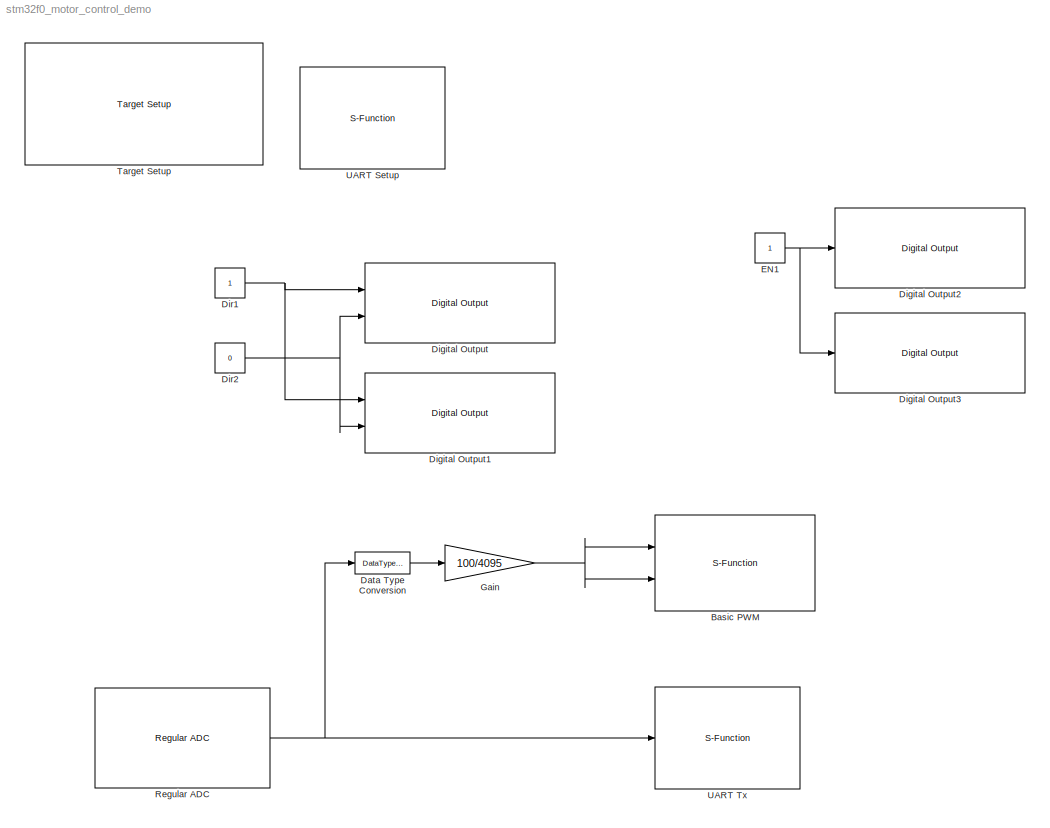
MODEL stm32f0_motor_control_demo
KIND model
CONFIG PreLoadFcn = waijung.modelPreload; % Required for working with Waijung Blockset. Do not remove.
BLOCK [S-Function] Basic PWM
  EnableBusSupport = off
  FunctionName = stm32f0_tim
  MaskCallbackString = stm32f0_tim_callback('conf');|stm32f0_tim_callback('timer');|||||||stm32f0_tim_callback('sampletime');|stm32f0_tim_callback('enablecustomportlabel');|stm32f0_tim_callback('conf');|stm32f0_tim_callback('conf');||stm32f0_tim_callback('blockid');||||||||
  MaskDisplay = text(0.95, 0.5, 'Timer: 3\\nPolarity: Active High\\nPeriod (sec): 0.0001\\nTs (sec): 0.1','ver','middle','hor','right'); port_label('input', 1,'CH3(B0)'); port_label('input', 2,'CH4(B1)');
  MaskEnableString = on,on,on,on,on,on,on,on,on,on,on,on,on,off,on,on,on,on,on,on,on,on
  MaskHelp = web(fullfile(waijungdocroot,'stm32f0_tim.htm'), '-browser')
  MaskIconFrame = on
  MaskIconOpaque = on
  MaskIconRotate = none
  MaskIconUnits = normalized
  MaskInitialization = stm32f0_tim_callback('init');
  MaskPortRotate = default
  MaskPromptString = Configuration|Timer|PWM Period (seconds)|Polarity|Channel 1|Channel 2|Channel 3|Channel 4|Sample time (sec)|Enable custom port labels (Ex. In1, In2, In3)|Custom input port labels (Ex. In1, In2, In3)|Custom output port labels (Ex. Out1, Out2, Out3)|Port Pin String|Block ID|Input Port Type|Input Port Width|Input Port Label|Output Port Type|Output Port Width|Output port label|Compatibility (Reserved ...<+45ch>
  MaskSelfModifiable = on
  MaskStyleString = popup(pwm),popup(1|2|3|14|15|16|17),edit,popup(Active High|Active Low),popup(Not available - Do not use|A6|C6|B4),popup(Not available - Do not use|A7|C7|B5),popup(Not available - Do not use|B0|C8),popup(Not available - Do not use|B1|C9),edit,checkbox,edit,edit,edit,edit,edit,edit,edit,edit,edit,edit,edit,edit
  MaskTabNameString = ,,,,,,,,,,,,,,,,,,,,,
  MaskToolTipString = on,on,on,on,on,on,on,on,on,on,on,on,on,on,on,on,on,on,on,on,on,on
  MaskTunableValueString = off,off,off,on,off,off,off,off,off,off,off,off,off,off,off,off,off,off,off,off,off,off
  MaskType = stm32f0_tim
  MaskValueString = pwm|3|0.0001|Active High|Not available - Do not use|Not available - Do not use|B0|B1|inf|off|Motor1,Motor2||0|BasicPWM|[-1 -1]|[]|{'CH3(B0)' 'CH4(B1)'}|[]|[]|{}|0|[\"3\",\"1\",\"0.0001\",\"Active High\",\"0\",\"0\",\"1\",\"1\",\"\",\"\",\"B\",\"B\",\"\",\"\",\"0\",\"1\",\"0\",\"0\",\"1\",\"1\",\"0\",\"1\",\"0\",\"0\",\"0\",\"4799\",\"0\",\"TIM_OCPolarity_High\"]
  MaskVarAliasString = ,,,,,,,,,,,,,,,,,,,,,
  MaskVariables = conf=&1;timer=&2;period=&3;polarity=@4;ch1pin=&5;ch2pin=&6;ch3pin=&7;ch4pin=&8;sampletime=@9;enablecustomportlabel=@10;cinputportlabel=&11;coutputportlabel=&12;portpinstr=&13;blockid=&14;inputporttype=@15;inputportwidth=@16;inputportlabel=&17;outputporttype=@18;outputportwidth=@19;outputportlabel=&20;compat=&21;optionstring=&22;
  MaskVisibilityString = off,on,on,on,on,on,on,on,on,on,off,off,off,off,off,off,off,off,off,off,off,off
  Parameters = conf,inputporttype,inputportwidth,outputporttype,outputportwidth,optionstring,sampletime,blockid
  Ports = [2]
BLOCK [DataTypeConversion] Data Type Conversion
  OutDataType = fixdt(1, 16)
  OutScaling = 2^0
  RndMeth = Floor
  SaturateOnIntegerOverflow = off
BLOCK [Reference] Digital Output  REF=stm32f0_io_lib/Digital Output
  Ports = [2]
  SourceBlock = stm32f0_io_lib/Digital Output
  SourceType = stm32f0_digital_output
  bitbandingstr = \n#define DigitalOutput_B2 Peripheral_BB(GPIOB->ODR, 2)  /* Output pin */\n#define DigitalOutput_B12 Peripheral_BB(GPIOB->ODR, 12)  /* Output pin */
  blockid = DigitalOutput
  cinputportlabel = Db1,Db2,EN2
  coutputportlabel = 0
  enablecustomportlabel = on
  pinstr = GPIO_Pin_2 | GPIO_Pin_12
  port = B
  porttype = Open Drain
  porttypestr = OD
  sampletime = -1
  sampletimestr = 0.1
  speed = 2
  use_bitband = off
  use_pin0 = off
  use_pin1 = off
  use_pin10 = off
  use_pin11 = off
  use_pin12 = on
  use_pin13 = off
  use_pin14 = off
  use_pin15 = off
  use_pin2 = on
  use_pin3 = off
  use_pin4 = off
  use_pin5 = off
  use_pin6 = off
  use_pin7 = off
  use_pin8 = off
  use_pin9 = off
  usedpinarray = [0  0  1  0  0  0  0  0  0  0  0  0  1  0  0  0]
BLOCK [Reference] Digital Output1  REF=stm32f0_io_lib/Digital Output
  Ports = [2]
  SourceBlock = stm32f0_io_lib/Digital Output
  SourceType = stm32f0_digital_output
  bitbandingstr = \n#define DigitalOutput1_A8 Peripheral_BB(GPIOA->ODR, 8)  /* Output pin */\n#define DigitalOutput1_A11 Peripheral_BB(GPIOA->ODR, 11)  /* Output pin */
  blockid = DigitalOutput1
  cinputportlabel = Da1,Da2,EN1
  coutputportlabel = 0
  enablecustomportlabel = on
  pinstr = GPIO_Pin_8 | GPIO_Pin_11
  port = A
  porttype = Open Drain
  porttypestr = OD
  sampletime = -1
  sampletimestr = 0.1
  speed = 2
  use_bitband = off
  use_pin0 = off
  use_pin1 = off
  use_pin10 = off
  use_pin11 = on
  use_pin12 = off
  use_pin13 = off
  use_pin14 = off
  use_pin15 = off
  use_pin2 = off
  use_pin3 = off
  use_pin4 = off
  use_pin5 = off
  use_pin6 = off
  use_pin7 = off
  use_pin8 = on
  use_pin9 = off
  usedpinarray = [0  0  0  0  0  0  0  0  1  0  0  1  0  0  0  0]
BLOCK [Reference] Digital Output2  REF=stm32f0_io_lib/Digital Output
  Ports = [1]
  SourceBlock = stm32f0_io_lib/Digital Output
  SourceType = stm32f0_digital_output
  bitbandingstr = \n#define DigitalOutput2_B13 Peripheral_BB(GPIOB->ODR, 13)  /* Output pin */
  blockid = DigitalOutput2
  cinputportlabel = Db1,Db2,EN2
  coutputportlabel = 0
  enablecustomportlabel = off
  pinstr = GPIO_Pin_13
  port = B
  porttype = Push Pull
  porttypestr = PP
  sampletime = -1
  sampletimestr = 0.1
  speed = 2
  use_bitband = off
  use_pin0 = off
  use_pin1 = off
  use_pin10 = off
  use_pin11 = off
  use_pin12 = off
  use_pin13 = on
  use_pin14 = off
  use_pin15 = off
  use_pin2 = off
  use_pin3 = off
  use_pin4 = off
  use_pin5 = off
  use_pin6 = off
  use_pin7 = off
  use_pin8 = off
  use_pin9 = off
  usedpinarray = [0  0  0  0  0  0  0  0  0  0  0  0  0  1  0  0]
BLOCK [Reference] Digital Output3  REF=stm32f0_io_lib/Digital Output
  Ports = [1]
  SourceBlock = stm32f0_io_lib/Digital Output
  SourceType = stm32f0_digital_output
  bitbandingstr = \n#define DigitalOutput3_A12 Peripheral_BB(GPIOA->ODR, 12)  /* Output pin */
  blockid = DigitalOutput3
  cinputportlabel = Da1,Da2,EN1
  coutputportlabel = 0
  enablecustomportlabel = off
  pinstr = GPIO_Pin_12
  port = A
  porttype = Push Pull
  porttypestr = PP
  sampletime = -1
  sampletimestr = 0.1
  speed = 2
  use_bitband = off
  use_pin0 = off
  use_pin1 = off
  use_pin10 = off
  use_pin11 = off
  use_pin12 = on
  use_pin13 = off
  use_pin14 = off
  use_pin15 = off
  use_pin2 = off
  use_pin3 = off
  use_pin4 = off
  use_pin5 = off
  use_pin6 = off
  use_pin7 = off
  use_pin8 = off
  use_pin9 = off
  usedpinarray = [0  0  0  0  0  0  0  0  0  0  0  0  1  0  0  0]
BLOCK [Constant] Dir1
  OutDataType = fixdt(1, 16)
  OutDataTypeMode = uint8
  OutDataTypeStr = uint8
  OutScaling = 2^0
BLOCK [Constant] Dir2
  OutDataType = fixdt(1, 16)
  OutDataTypeMode = uint8
  OutDataTypeStr = uint8
  OutScaling = 2^0
  Value = 0
BLOCK [Constant] EN1
  OutDataType = fixdt(1, 16)
  OutDataTypeMode = uint8
  OutDataTypeStr = uint8
  OutScaling = 2^0
BLOCK [Gain] Gain
  Gain = 100/4095
  OutDataType = fixdt(1, 16)
  OutDataTypeMode = Inherit via internal rule
  OutDataTypeStr = Inherit: Inherit via internal rule
  OutScaling = 2^0
  ParamDataTypeStr = single
  ParameterDataType = fixdt(1, 16)
  ParameterDataTypeMode = single
  ParameterScaling = 2^0
  SaturateOnIntegerOverflow = off
BLOCK [Reference] Regular ADC  REF=stm32f0_adc_lib/Regular ADC
  Ports = [0, 1]
  SourceBlock = stm32f0_adc_lib/Regular ADC
  SourceType = stm32f0_adc
  adc_ch0 = on
  adc_ch1 = off
  adc_ch10 = off
  adc_ch11 = off
  adc_ch12 = off
  adc_ch13 = off
  adc_ch14 = off
  adc_ch15 = off
  adc_ch16 = off
  adc_ch17 = off
  adc_ch18 = off
  adc_ch2 = off
  adc_ch3 = off
  adc_ch4 = off
  adc_ch5 = off
  adc_ch6 = off
  adc_ch7 = off
  adc_ch8 = off
  adc_ch9 = off
  blockid = RegularADC
  compat = 0
  conf = adc
  coutputportlabel = voltage,current
  enablecustomportlabel = off
  inputportlabel = {}
  inputporttype = []
  inputportwidth = []
  module = 1
  optionstring = [\"1\",\"ADC_SampleTime_55_5Cycles\",\"dummy\",\"dummy\",\"dummy\",\"1\",\"A\",\"0\",\"0\",\"A\",\"1\",\"0\",\"A\",\"2\",\"0\",\"A\",\"3\",\"0\",\"A\",\"4\",\"0\",\"A\",\"5\",\"0\",\"A\",\"6\",\"0\",\"A\",\"7\",\"0\",\"B\",\"0\",\"0\",\"B\",\"1\",\"0\",\"C\",\"0\",\"0\",\"C\",\"1\",\"0\",\"C\",\"2\",\"0\",\"C\",\"3\",\"0\",\"C\",\"4\",\"0\",\"C\",\"5\",\"0\",\"A\",\"0\",\"0\",\"A\",\"0\",\"0\",\"A...<+64ch>
  outputdatatype = Uint16
  outputportlabel = {'ADC_IN0'}
  outputporttype = [5]
  outputportwidth = []
  portpinstr = 0
  sampletime = inf
  samplingtime = 55.5 Cycles
BLOCK [Reference] Target Setup  REF=stm32f0_device_config_lib/Target Setup
  Ports = []
  Priority = 100
  SourceBlock = stm32f0_device_config_lib/Target Setup
  SourceType = stm32f0_target_setup
  assemblercontrolstr = $(patsubst %, -I%, .) -mcpu=cortex-m0 -mtune=cortex-m0 -mthumb -Wall -O3 -Wa,-amhls=$(<:.s=.lst) -D__STACK_SIZE=$(STACK_SIZE) -D__HEAP_SIZE=$(HEAP_SIZE)
  blockid = TargetSetup
  clockconfig = STM32F072B-DISCO Default (HSIOSC-8MHz/HCLK-48MHz)
  compiler = GNU ARM
  compilercontrolstr = $(patsubst %, -I%, .) -mcpu=cortex-m0 -mthumb -mabi=aapcs -Wall -O3 -mfloat-abi=soft -ffunction-sections -fdata-sections -fno-strict-aliasing -fno-builtin --short-enums
  editctrlstr = on
  enableautocompiledownload = on
  execprofile = None
  flashlength = 128k
  flashorigin = 0x8000000
  fullchiperase = off
  hclk = 48000000
  heapsize = 0x200
  hseval = 8000000
  lastprofileruart = 3
  linkercontrolstr = -T$(LD_SCRIPT) -Wl,-Map=$(MAP),--cref,--no-warn-mismatch -mcpu=cortex-m0 -mthumb  -Wall -O3 -mabi=aapcs -lc -specs=nosys.specs
  manualsetsampletime = off
  mcu = STM32F072CB (LQFP48)
  mcustr = STM32F072CB
  previous_compiler = GNU ARM
  profilerbaud = 500000
  profilerinitstr = 0.1,48000000,4800000,500000,0
  profilertxpin = Not used
  profileruart = 3
  programmerinterface = aMG USB Connect
  ramlength = 16k
  ramorigin = 0x20000000
  runafterdownload = on
  sampletime = 0.1
  showmemoryconfiguration = on
  stacksize = 0x400
  stdlib = STM32F072
  system_stm32f0xx_c_path = <path>
  systickreloadvalue = 4800000
  useextram = off
BLOCK [S-Function] UART Setup
  EnableBusSupport = off
  FunctionName = stm32f0_uart
  MaskCallbackString = stm32f0_uart_callback('conf');|stm32f0_uart_callback('uartmodule');|||||||stm32f0_uart_callback('flowcontrol');|||stm32f0_uart_callback('advanceoptions');|||stm32f0_uart_callback('conf');|stm32f0_uart_callback('conf');|stm32f0_uart_callback('binheader');|stm32f0_uart_callback('binterminator');|||||||||stm32f0_uart_callback('asciiformat');|||stm32f0_uart_callback('storagename');|||stm32f0_uart_call...<+176ch>
  MaskDescription = Default configuration for aMG USB Connect board:\n - UART module: 1\n - Tx pin: A9\n - Rx pin: A10\n\nAdvance options\n - Rx buffer size (bytes): max packet length can be received via DMA.\n - Tx buffer size (bytes): max packet length can be transmit via DMA.
  MaskDisplay = text(0.5, 0.5, 'Module: USART1_Setup\\nBaud (Bps): 115200\\nDMA Buffer: 64/64\\nTx/Rx Pin: A9/A10','ver','middle','hor','center');
  MaskEnableString = on,on,on,on,on,on,on,on,on,off,off,on,on,on,on,on,on,on,on,on,on,on,on,on,on,on,on,on,on,on,on,on,on,on,on,on,on,off,on,on,on,on,on,on,on,on,on,on,on,on
  MaskHelp = web(fullfile(waijungdocroot,'stm32f0_uart_setup.htm'), '-browser')
  MaskIconFrame = on
  MaskIconOpaque = on
  MaskIconRotate = none
  MaskIconUnits = normalized
  MaskInitialization = stm32f0_uart_callback('init');
  MaskPortRotate = default
  MaskPromptString = Configuration|UART Module|Baud rate (bps)|Data bits|Parity|Stop bit|Tx pin|Rx pin|Hardware flow control|HW Flow control, CTS Pin|HW Flow control, RTS Pin|Advance options|Rx buffer size (bytes)|Tx buffer size (bytes)|Transfer|Packet mode|Binary header (example: '7E 7E')|Binary terminator (example: '03 03')|Number of data port, type DOUBLE|Number of data port, type SINGLE|Number of data port, type I...<+631ch>
  MaskSelfModifiable = on
  MaskStyleString = popup(Setup|Tx|Rx),popup(1|2|3|4),edit,popup(8),popup(No|Odd|Even),popup(0.5|1|1.5|2),popup(Not used|A9|B6),popup(Not used|A10|B7),popup(None|RTS|CTS|RTS/CTS),popup(Not used|A11),popup(Not used|A12),checkbox,popup(16|32|64|128|256|512),popup(16|32|64|128|256|512),popup(Blocking|Non-Blocking),popup(Ascii|Binary|String Buffer),edit,edit,edit,edit,edit,edit,edit,edit,edit,edit,edit,popup(CR (0x0D - \...<+259ch>
  MaskTabNameString = ,,,,,,,,,,,,,,,,,,,,,,,,,,,,,,,,,,,,,,,,,,,,,,,,,
  MaskToolTipString = on,on,on,on,on,on,on,on,on,on,on,on,on,on,on,on,on,on,on,on,on,on,on,on,on,on,on,on,on,on,on,on,on,on,on,on,on,on,on,on,on,on,on,on,on,on,on,on,on,on
  MaskTunableValueString = off,off,off,off,off,off,off,off,off,off,off,off,off,off,off,off,off,off,off,off,off,off,off,off,off,off,off,off,off,off,off,off,off,off,off,off,off,off,off,off,off,off,off,off,off,off,off,off,off,off
  MaskType = stm32f0_uart
  MaskValueString = Setup|1|115200|8|No|1|A9|A10|None|Not used|Not used|on|64|64|Non-Blocking|Binary|'7E 7E'|'03 03'|1|1|0|0|0|1|0|0|'%1.2f'|CR (0x0D - \"\\r\")|CR (0x0D - \"\\r\")|<empty>|||-1|off|de|fff,ff,sdfsd|0|UARTSetup|[]|[]|{}|[]|[]|{}|0|[\"1\", \"1\", \"A\", \"9\", \"1\", \"A\", \"10\", \"0\", \"*\", \"*\", \"0\", \"*\", \"*\", \"1\", \"1\", \"\", \"\", \"115200\", \"8\", \"No\", \"1\", \"None\", \"3\", \"2\...<+65ch>
  MaskVarAliasString = ,,,,,,,,,,,,,,,,,,,,,,,,,,,,,,,,,,,,,,,,,,,,,,,,,
  MaskVariables = conf=&1;uartmodule=&2;baudrate=@3;databits=@4;parity=&5;stopbit=&6;remaptxpin=&7;remaprxpin=&8;flowcontrol=&9;remapctspin=&10;remaprtspin=&11;advanceoptions=@12;rxbuffersize=@13;txbuffersize=@14;transfer=&15;packetmode=&16;binheader=&17;binterminator=&18;porttype_double=@19;porttype_single=@20;porttype_int8=@21;porttype_uint8=@22;porttype_int16=@23;porttype_uint16=@24;porttype_int32=@25;porttype_u...<+445ch>
  MaskVisibilityString = off,on,on,on,on,on,on,on,on,on,on,on,on,on,off,off,off,off,off,off,off,off,off,off,off,off,off,off,off,off,off,off,off,off,off,off,off,off,off,off,off,off,off,off,off,off,off,off,off,off
  Parameters = conf,inputporttype,inputportwidth,outputporttype,outputportwidth,asciiheader,optionstring,headerstring,terminatorstring,asciidatatypestring,sampletime,blockid
  Ports = []
BLOCK [S-Function] UART Tx
  EnableBusSupport = off
  FunctionName = stm32f0_uart
  MaskCallbackString = stm32f0_uart_callback('conf');|stm32f0_uart_callback('uartmodule');|||||||stm32f0_uart_callback('flowcontrol');|||stm32f0_uart_callback('advanceoptions');|||stm32f0_uart_callback('conf');|stm32f0_uart_callback('conf');|stm32f0_uart_callback('binheader');|stm32f0_uart_callback('binterminator');|||||||||stm32f0_uart_callback('asciiformat');|||stm32f0_uart_callback('storagename');|||stm32f0_uart_call...<+176ch>
  MaskDescription = UART Module\n - Select module corresponding to \"UART Setup\" block.\nTransfer\n - Blocking: after write DMA buffer, the block wait until buffer empty.\n - Non-Blocking: the block will not wait for buffer empty.\nPacket mode:\n - Ascii: sending data is ascii, Ascii format + End of packet.\n - Binary: sending data is binary format, Header + Data + Terminator\n - String Buffer: Volatile Data Storage...<+256ch>
  MaskDisplay = text(0.95, 0.5, 'Module: USART1_Tx\\nPacket: Ascii\\nTransfer: Non-Blocking\\nTs (sec): 0.1','ver','middle','hor','right'); port_label('input', 1,'%u');
  MaskEnableString = on,on,on,on,on,on,on,on,on,off,off,on,on,on,on,on,on,on,on,on,on,on,on,on,on,on,on,on,on,on,on,on,on,on,on,on,on,off,on,on,on,on,on,on,on,on,on,on,on,on
  MaskHelp = web(fullfile(waijungdocroot,'stm32f0_uart_tx.htm'), '-browser')
  MaskIconFrame = on
  MaskIconOpaque = on
  MaskIconRotate = none
  MaskIconUnits = normalized
  MaskInitialization = stm32f0_uart_callback('init');
  MaskPortRotate = default
  MaskPromptString = Configuration|UART Module|Baud rate (bps)|Data bits|Parity|Stop bit|Tx pin|Rx pin|Hardware flow control|HW Flow control, CTS Pin|HW Flow control, RTS Pin|Advance options|Rx buffer size (bytes)|Tx buffer size (bytes)|Transfer|Packet mode|Binary header (example: '7E 7E')|Binary terminator (example: '03 03')|Number of data port, type DOUBLE|Number of data port, type SINGLE|Number of data port, type I...<+631ch>
  MaskSelfModifiable = on
  MaskStyleString = popup(Setup|Tx|Rx),popup(1|2|3|4),edit,popup(8),popup(No|Odd|Even),popup(0.5|1|1.5|2),popup(Not used|A9|B6),popup(Not used|A10|B7),popup(None|RTS|CTS|RTS/CTS),popup(Not used|A11),popup(Not used|A12),checkbox,popup(16|32|64|128|256|512),popup(16|32|64|128|256|512),popup(Blocking|Non-Blocking),popup(Ascii|Binary|String Buffer),edit,edit,edit,edit,edit,edit,edit,edit,edit,edit,edit,popup(CR (0x0D - \...<+259ch>
  MaskTabNameString = ,,,,,,,,,,,,,,,,,,,,,,,,,,,,,,,,,,,,,,,,,,,,,,,,,
  MaskToolTipString = on,on,on,on,on,on,on,on,on,on,on,on,on,on,on,on,on,on,on,on,on,on,on,on,on,on,on,on,on,on,on,on,on,on,on,on,on,on,on,on,on,on,on,on,on,on,on,on,on,on
  MaskTunableValueString = off,off,off,off,off,off,off,off,off,off,off,off,off,off,off,off,off,off,off,off,off,off,off,off,off,off,off,off,off,off,off,off,off,off,off,off,off,off,off,off,off,off,off,off,off,off,off,off,off,off
  MaskType = stm32f0_uart
  MaskValueString = Tx|1|115200|8|No|1|A9|A10|None|Not used|Not used|off|64|64|Non-Blocking|Ascii|'7E 7E'|'03 03'|0|0|0|0|0|0|0|2|'Value=%u'|CR (0x0D - \"\\r\")|CRLF (0x0D 0x0A - \"<path>")|<empty>||Value=%u\\r\\n|inf|off|de|fff,ff,sdfsd|0|UARTTx|[ -1]|[]|{ '%u'}|[]|[]|{}|0|[\"1\", \"1\", \"A\", \"9\", \"1\", \"A\", \"10\", \"0\", \"*\", \"*\", \"0\", \"*\", \"*\", \"1\", \"1\", \"\", \"\", \"115200\", \"8\", \"No\"...<+119ch>
  MaskVarAliasString = ,,,,,,,,,,,,,,,,,,,,,,,,,,,,,,,,,,,,,,,,,,,,,,,,,
  MaskVariables = conf=&1;uartmodule=&2;baudrate=@3;databits=@4;parity=&5;stopbit=&6;remaptxpin=&7;remaprxpin=&8;flowcontrol=&9;remapctspin=&10;remaprtspin=&11;advanceoptions=@12;rxbuffersize=@13;txbuffersize=@14;transfer=&15;packetmode=&16;binheader=&17;binterminator=&18;porttype_double=@19;porttype_single=@20;porttype_int8=@21;porttype_uint8=@22;porttype_int16=@23;porttype_uint16=@24;porttype_int32=@25;porttype_u...<+445ch>
  MaskVisibilityString = off,on,off,off,off,off,off,off,off,off,off,off,off,off,on,on,off,off,off,off,off,off,off,off,off,off,on,off,on,off,off,off,on,on,off,off,off,off,off,off,off,off,off,off,off,off,off,off,off,off
  Parameters = conf,inputporttype,inputportwidth,outputporttype,outputportwidth,asciiheader,optionstring,headerstring,terminatorstring,asciidatatypestring,sampletime,blockid
  Ports = [1]
LINE Data Type Conversion:1 -> Gain:1
NET Dir1:1 -> Digital Output1:1, Digital Output:1
NET Dir2:1 -> Digital Output1:2, Digital Output:2
NET EN1:1 -> Digital Output2:1, Digital Output3:1
NET Gain:1 -> Basic PWM:1, Basic PWM:2
NET Regular ADC:1 -> Data Type Conversion:1, UART Tx:1
note: NET lines group one-source signal fan-out (src -> all destinations, sorted); 1:1 wires keep LINE
note: 2 file-system paths scrubbed to <path> (not preserved elsewhere — flat text is the only slx artifact)
